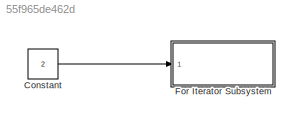
MODEL slx_55f965de462d
KIND model
CONFIG AbsTol = auto
CONFIG FixedStep = auto
CONFIG MaxStep = auto
CONFIG MinStep = auto
CONFIG RelTol = 1e-3
CONFIG SampleTimeConstraint = Unconstrained
CONFIG Solver = VariableStepAuto
CONFIG SolverMode = Auto
CONFIG SolverName = VariableStepAuto
CONFIG StartFcn = open_scope
CONFIG StartTime = 0.0
CONFIG StopTime = 10.0
BLOCK [Constant] Constant
  Value = 2
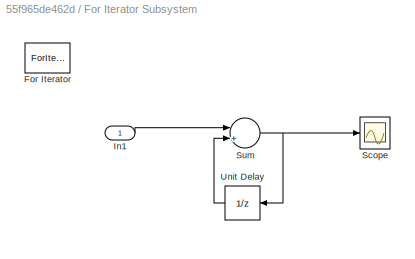
BLOCK [SubSystem] For Iterator Subsystem
  Ports = [1]
  RequestExecContextInheritance = off
  TreatAsAtomicUnit = on
  Variant = off
BLOCK [ForIterator] For Iterator Subsystem/For Iterator
  Ports = []
  ShowIterationPort = off
BLOCK [Inport] For Iterator Subsystem/In1
  IconDisplay = Port number
BLOCK [Scope] For Iterator Subsystem/Scope
  Ports = [1]
  ScopeSpecificationString = Simulink.scopes.TimeScopeBlockCfg('CurrentConfiguration', extmgr.ConfigurationSet(extmgr.Configuration('Core','General UI',true),extmgr.Configuration('Core','Source UI',true),extmgr.Configuration('Sources','WiredSimulink',true),extmgr.Configuration('Visuals','Time Domain',true,'SerializedDisplays',{struct('MinYLimReal','-61.5','MaxYLimReal','573.5','YLabelReal','','MinYLimMag','0.00000','MaxYLimMa...<+1309ch>
BLOCK [Sum] For Iterator Subsystem/Sum
  InputSameDT = off
  Inputs = |++
  OutDataTypeStr = Inherit: Inherit via internal rule
  Ports = [2, 1]
  SaturateOnIntegerOverflow = off
BLOCK [UnitDelay] For Iterator Subsystem/Unit Delay
  InputProcessing = Elements as channels (sample based)
  SampleTime = -1
LINE Constant:1 -> For Iterator Subsystem:1
LINE For Iterator Subsystem/In1:1 -> For Iterator Subsystem/Sum:1
NET For Iterator Subsystem/Sum:1 -> For Iterator Subsystem/Scope:1, For Iterator Subsystem/Unit Delay:1
LINE For Iterator Subsystem/Unit Delay:1 -> For Iterator Subsystem/Sum:2
note: NET lines group one-source signal fan-out (src -> all destinations, sorted); 1:1 wires keep LINE
